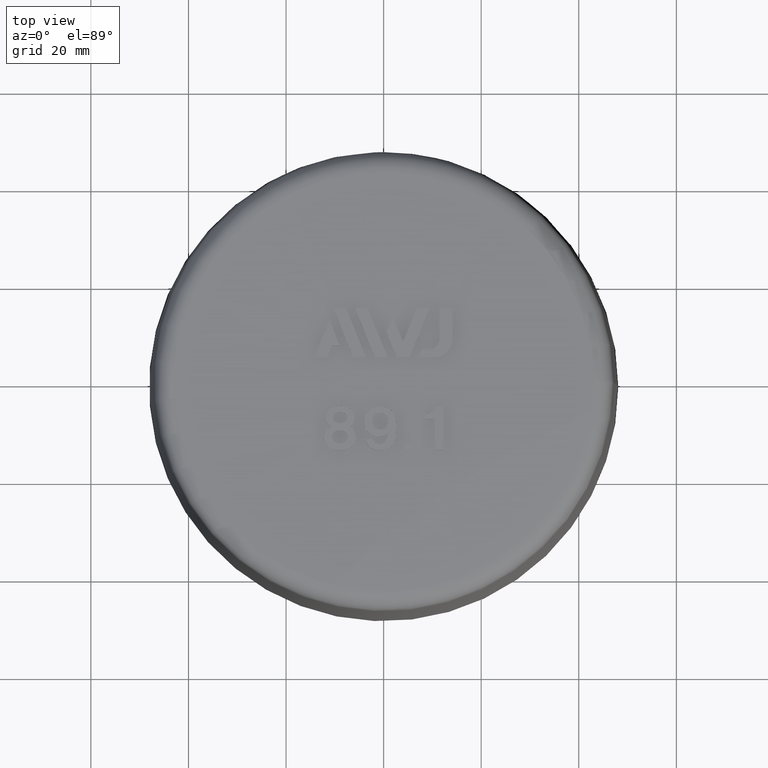
[diagram: clean part render]
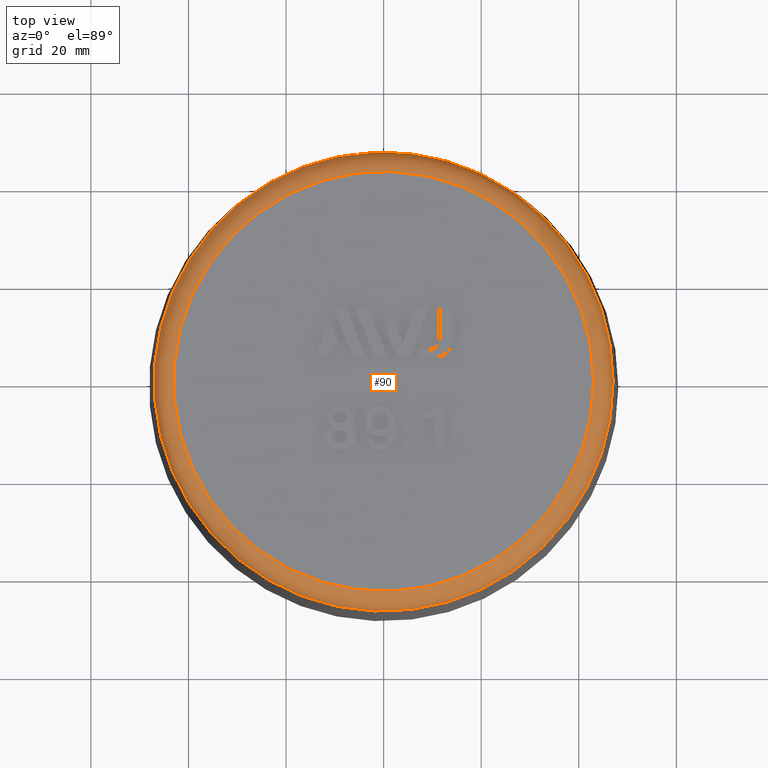
[diagram: same view with one face highlighted and labeled with its STEP entity id]
A machine part, top view. The second image highlights one B-rep face of the part: STEP entity #90.
In plain terms, the highlighted toroidal blend (fillet) surface has major radius 43.0437 mm and minor (blend) radius 4 mm.
Its self-contained STEP definition (entity closure, byte-faithful):
#90 = ADVANCED_FACE( '', ( #185, #186 ), #187, .T. );
#185 = FACE_OUTER_BOUND( '', #343, .T. );
#186 = FACE_OUTER_BOUND( '', #344, .T. );
#187 = TOROIDAL_SURFACE( '', #345, 43.0436507890378, 4.00000000000000 );
#343 = EDGE_LOOP( '', ( #677 ) );
#344 = EDGE_LOOP( '', ( #678 ) );
#345 = AXIS2_PLACEMENT_3D( '', #679, #680, #681 );
#677 = ORIENTED_EDGE( '', *, *, #1075, .F. );
#678 = ORIENTED_EDGE( '', *, *, #1125, .T. );
#679 = CARTESIAN_POINT( '', ( -3.61258874377601E-015, 0.000000000000000, 59.0000000000000 ) );
#680 = DIRECTION( '', ( -6.12303176911189E-017, 0.000000000000000, 1.00000000000000 ) );
#681 = DIRECTION( '', ( 1.00000000000000, 0.000000000000000, 6.12303176911189E-017 ) );
#1075 = EDGE_CURVE( '', #1238, #1238, #1239, .T. );
#1125 = EDGE_CURVE( '', #1329, #1329, #1330, .T. );
#1238 = VERTEX_POINT( '', #1555 );
#1239 = CIRCLE( '', #1556, 43.0436507890378 );
#1329 = VERTEX_POINT( '', #1849 );
#1330 = CIRCLE( '', #1850, 47.0430415696633 );
#1555 = CARTESIAN_POINT( '', ( 43.0436507890378, 0.000000000000000, 63.0000000000000 ) );
#1556 = AXIS2_PLACEMENT_3D( '', #2069, #2070, #2071 );
#1849 = CARTESIAN_POINT( '', ( 47.0430415696633, 0.000000000000000, 59.0698096257491 ) );
#1850 = AXIS2_PLACEMENT_3D( '', #2109, #2110, #2111 );
#2069 = CARTESIAN_POINT( '', ( -3.85751001454049E-015, 0.000000000000000, 63.0000000000000 ) );
#2070 = DIRECTION( '', ( -6.12303176911189E-017, 0.000000000000000, 1.00000000000000 ) );
#2071 = DIRECTION( '', ( 1.00000000000000, 0.000000000000000, 6.12303176911189E-017 ) );
#2109 = CARTESIAN_POINT( '', ( -3.61686320933853E-015, 0.000000000000000, 59.0698096257491 ) );
#2110 = DIRECTION( '', ( -6.12303176911189E-017, 0.000000000000000, 1.00000000000000 ) );
#2111 = DIRECTION( '', ( 1.00000000000000, 0.000000000000000, 6.12303176911189E-017 ) );